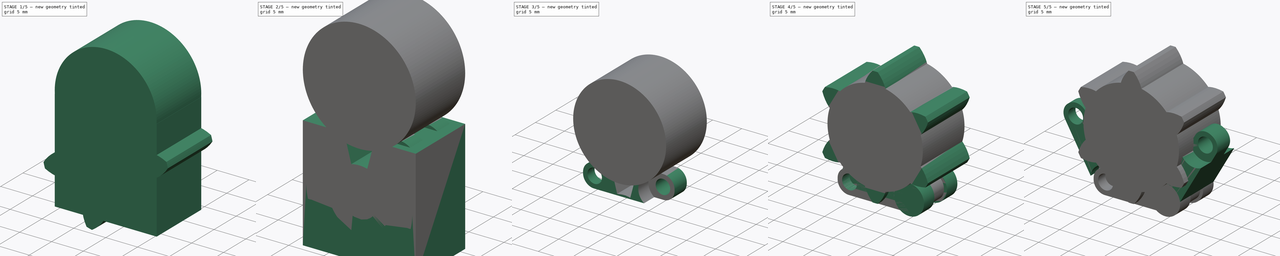
[diagram: build sequence overview — one tinted view per stage of 5, left to right]
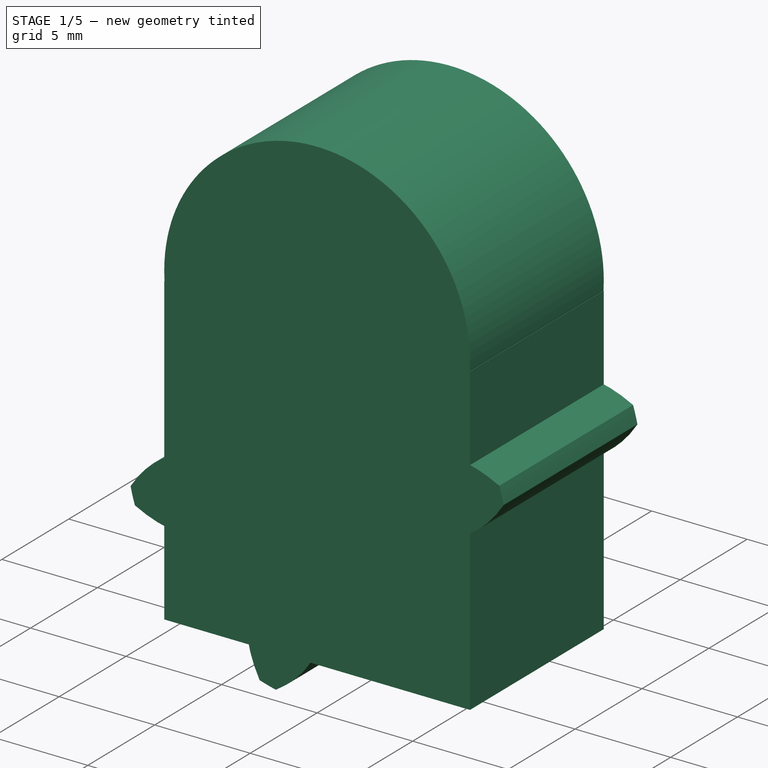
[diagram: stage 1 of 5 — iso view after this stage's code; geometry added in this stage tinted green]
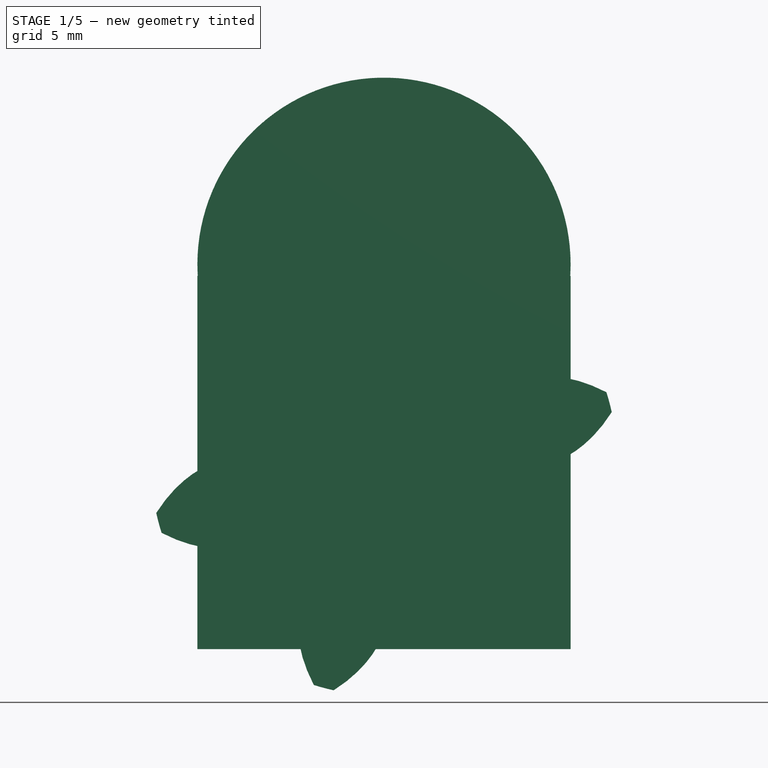
[diagram: stage 1 of 5 — front view after this stage's code; geometry added in this stage tinted green]
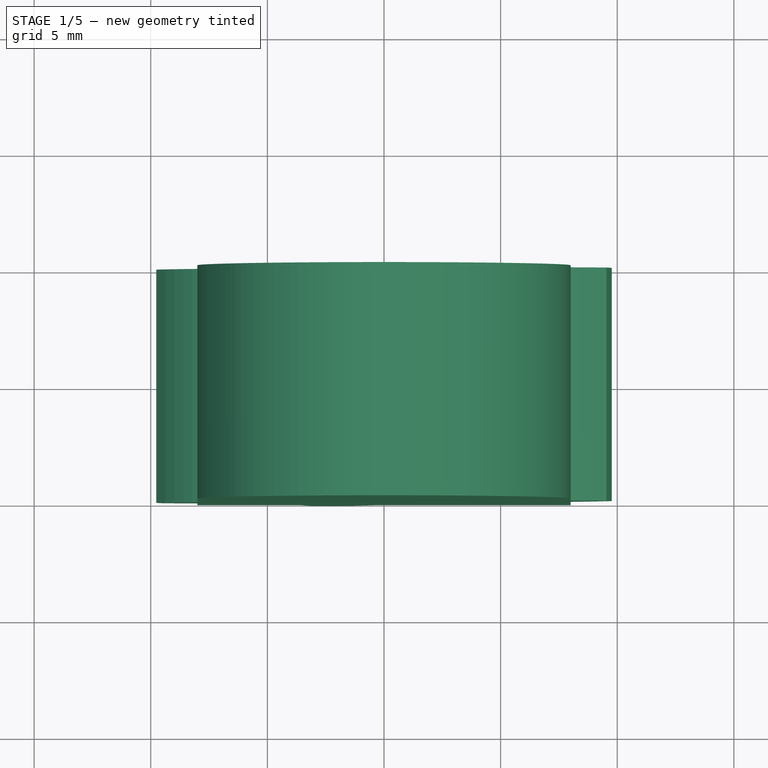
[diagram: stage 1 of 5 — top view after this stage's code; geometry added in this stage tinted green]
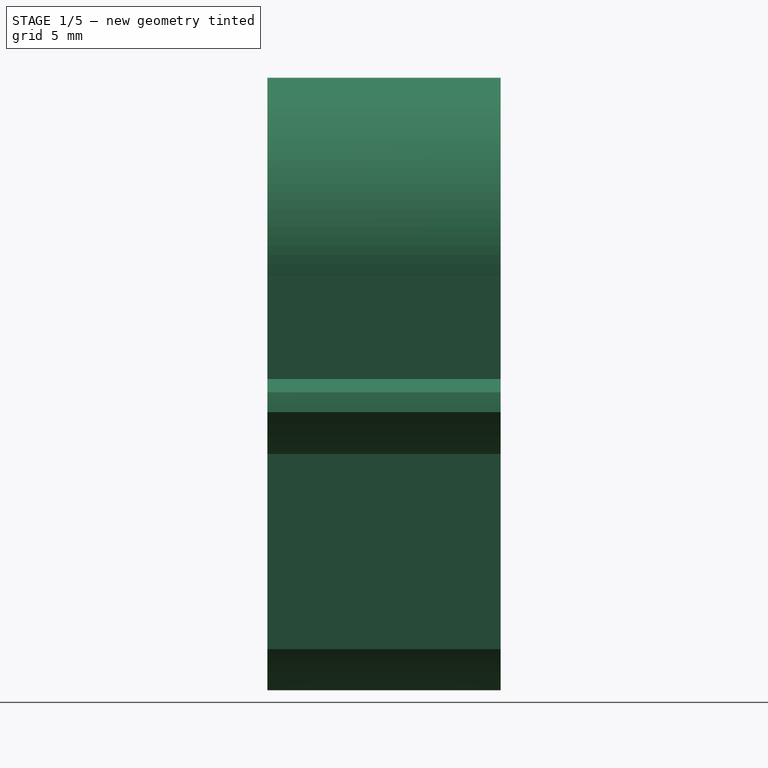
[diagram: stage 1 of 5 — right view after this stage's code; geometry added in this stage tinted green]
FCSTD DOCUMENT  (FreeCAD 0.14R2935 (Git))
Label: track-segment-01
License: CC-BY 3.0
LicenseURL: http://creativecommons.org/licenses/by/3.0/
objects: PartDesign::Pad×5, Part::Cylinder×5, Part::MultiFuse×5, Part::Cut×3, Sketcher::SketchObject×2, Part::FeaturePython×2, Part::MultiCommon×2
note: 29 computed .brp shape members not serialized (recipe doc carries the construction recipe); baked Part::Feature solids carry a one-line shape summary decoded from their .brp

FEATURE [Part::FeaturePython] Gear001  # WARN: FeaturePython — macro-defined, semantics opaque (R4)
  CenterRadius = 2.5
  GearHeight = 10
  LevelOfDetail = 10
  Module = 2.5
  NumberTeeth = 6
  Placement = pos=(0,5,0) rot=(1,0,0;1.5708rad)
  PressureAngle = 20
  Verbose = true
FEATURE [Part::Cylinder] Cylinder003
  Angle = 360
  Height = 10
  Placement = pos=(0,5,0) rot=(1,0,0;1.5708rad)
  Radius = 7.5
FEATURE [Sketcher::SketchObject] Sketch001
  Placement = pos=(0,0,0) rot=(1,0,0;1.5708rad)
  sketch-geometry (8):
    g0: LineSegment StartX=-2 StartY=8 StartZ=0 EndX=-8 EndY=8 EndZ=0
    g1: LineSegment StartX=-8 StartY=8 StartZ=0 EndX=-8 EndY=-8 EndZ=0
    g2: LineSegment StartX=-8 StartY=-8 StartZ=0 EndX=8 EndY=-8 EndZ=0
    g3: LineSegment StartX=8 StartY=-8 StartZ=0 EndX=8 EndY=8 EndZ=0
    g4: LineSegment StartX=8 StartY=8 StartZ=0 EndX=2 EndY=8 EndZ=0
    g5: LineSegment StartX=2 StartY=8 StartZ=0 EndX=2 EndY=4 EndZ=0
    g6: LineSegment StartX=2 StartY=4 StartZ=0 EndX=-2 EndY=4 EndZ=0
    g7: LineSegment StartX=-2 StartY=4 StartZ=0 EndX=-2 EndY=8 EndZ=0
  constraints (24):
    c: Horizontal(g0)
    c: Coincident(g0,g1)
    c: Vertical(g1)
    c: Coincident(g1,g2)
    c: Horizontal(g2)
    c: Coincident(g2,g3)
    c: Vertical(g3)
    c: Coincident(g3,g4)
    c: Horizontal(g4)
    c: Coincident(g4,g5)
    c: Vertical(g5)
    c: Coincident(g5,g6)
    c: Horizontal(g6)
    c: Coincident(g6,g7)
    c: Vertical(g7)
    c: Coincident(g7,g0)
    c: DistanceY(g-1,g4) = 8
    c: DistanceY(g-1,g0) = 8
    c: DistanceY(g-1,g6) = 4
    c: DistanceX(g-1,g0) = -8
    c: DistanceX(g-1,g6) = -2
    c: DistanceX(g-1,g5) = 2
    c: DistanceX(g-1,g3) = 8
    c: DistanceY(g-1,g2) = -8
FEATURE [PartDesign::Pad] Pad004
  Length = 10
  Length2 = 100
  Midplane = true
  Placement = pos=(0,0,0) rot=(1,0,0;1.5708rad)
  Sketch = -> Sketch001
  Type = 0
FEATURE [Part::Cylinder] Cylinder004
  Angle = 360
  Height = 10
  Placement = pos=(0,5,8.5) rot=(1,0,0;1.5708rad)
  Radius = 8
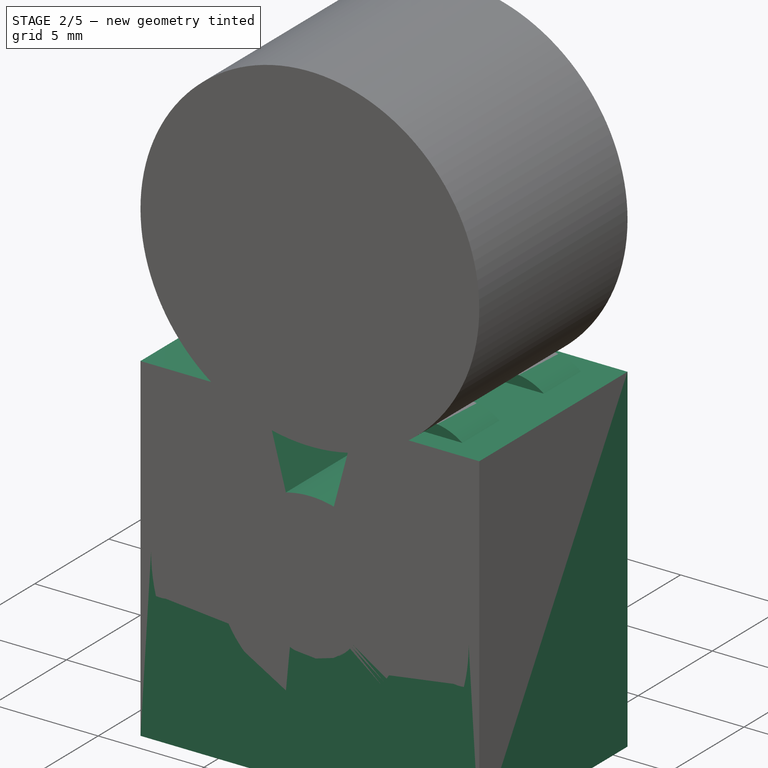
[diagram: stage 2 of 5 — iso view after this stage's code; geometry added in this stage tinted green]
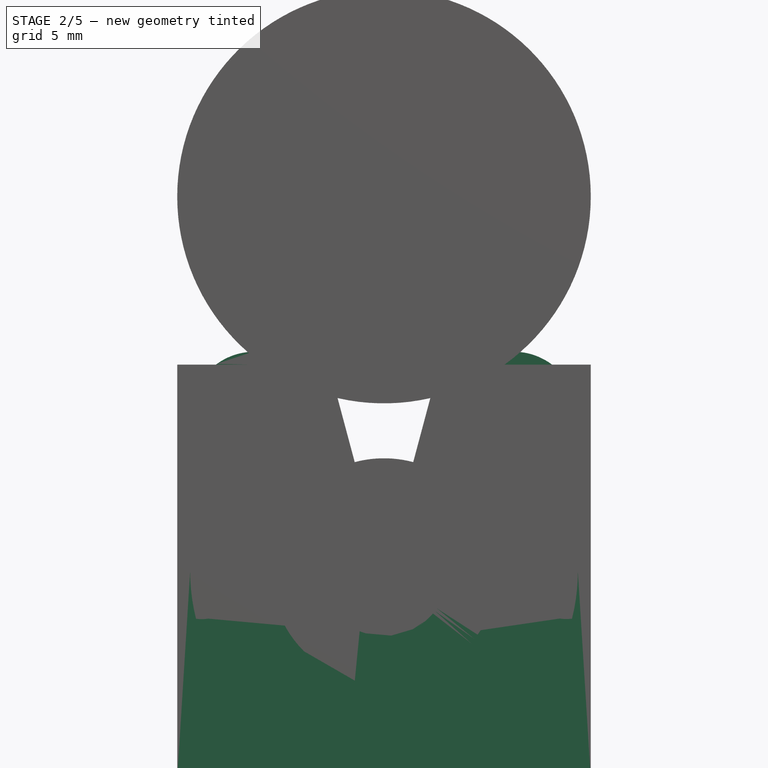
[diagram: stage 2 of 5 — front view after this stage's code; geometry added in this stage tinted green]
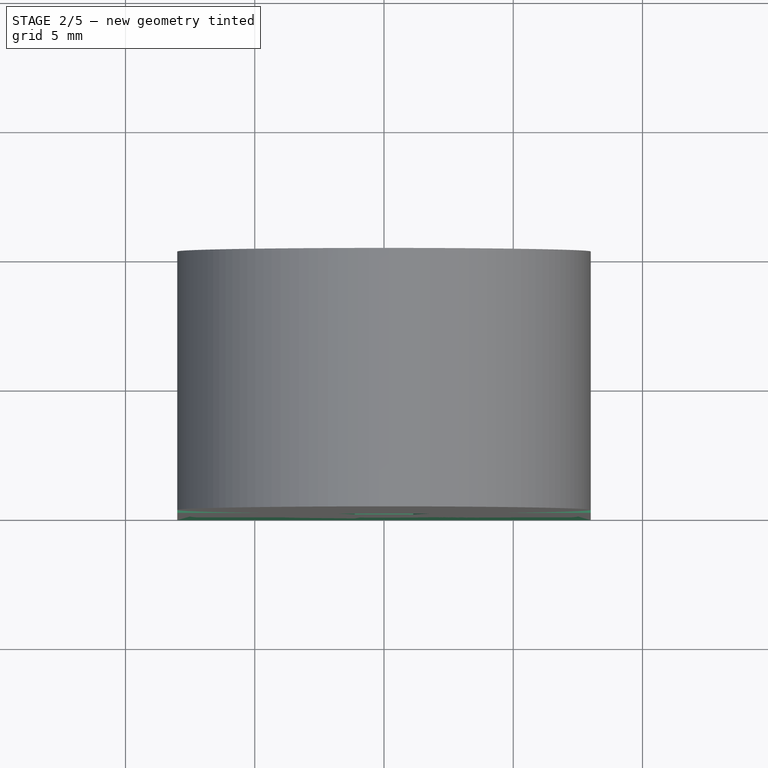
[diagram: stage 2 of 5 — top view after this stage's code; geometry added in this stage tinted green]
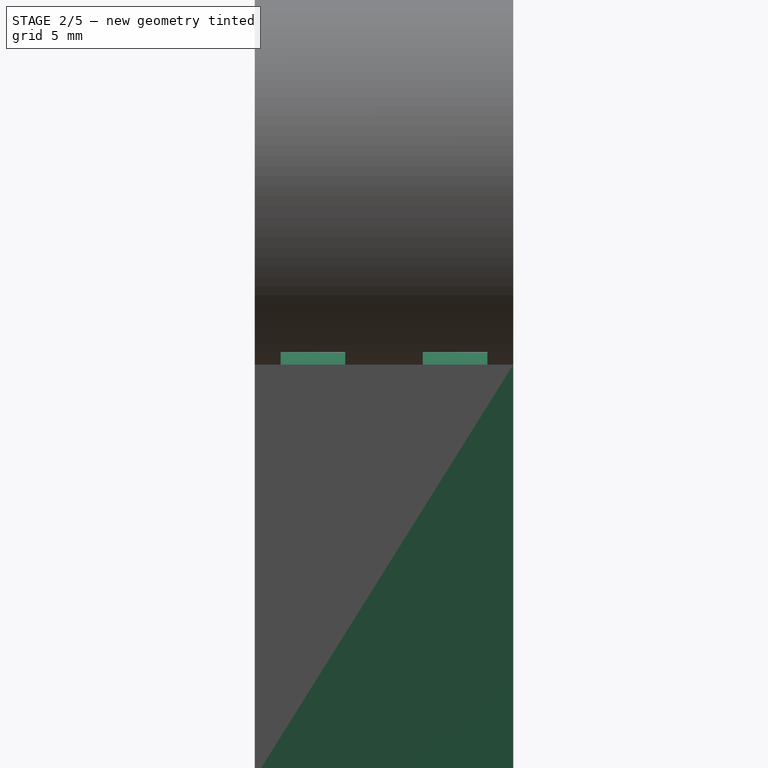
[diagram: stage 2 of 5 — right view after this stage's code; geometry added in this stage tinted green]
FEATURE [Part::Cylinder] Cylinder
  Angle = 360
  Height = 4.5
  Placement = pos=(-5,2.25,0) rot=(1,0,0;1.5708rad)
  Radius = 2.5
FEATURE [Part::Cylinder] Cylinder001
  Angle = 360
  Height = 2.5
  Placement = pos=(5,4,0) rot=(1,0,0;1.5708rad)
  Radius = 2.5
FEATURE [Part::Cylinder] Cylinder002
  Angle = 360
  Height = 2.5
  Placement = pos=(5,-1.5,0) rot=(1,0,0;1.5708rad)
  Radius = 2.5
FEATURE [Part::MultiCommon] Common
  Placement = pos=(0,0,0) rot=(0,1,0;0.261799rad)
  Shapes = -> [Gear001,Cylinder003]
FEATURE [Part::MultiFuse] Fusion004
  Placement = pos=(0,0,-6) rot=(0,0,1;0rad)
  Shapes = -> [Common,Pad004]
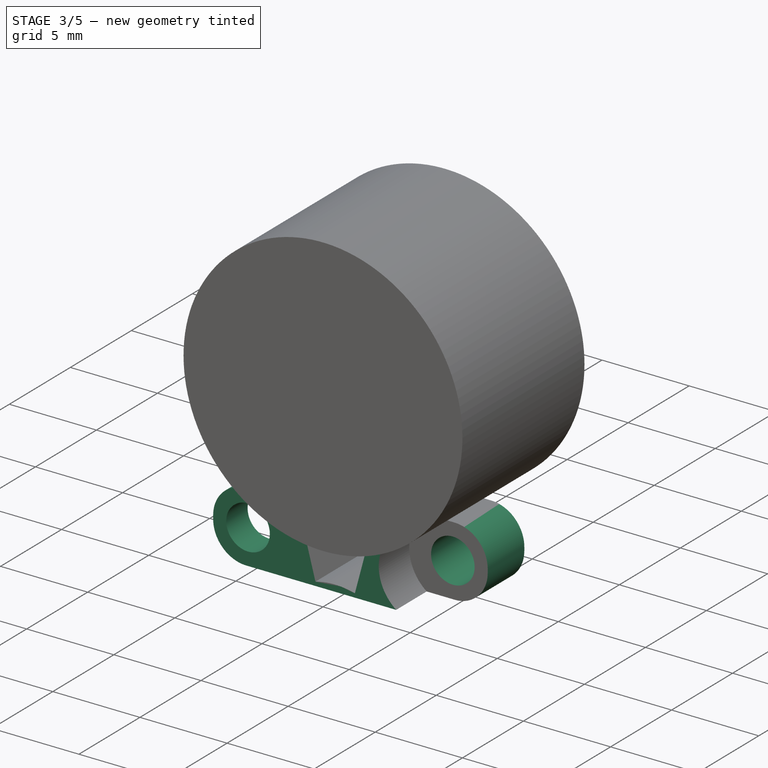
[diagram: stage 3 of 5 — iso view after this stage's code; geometry added in this stage tinted green]
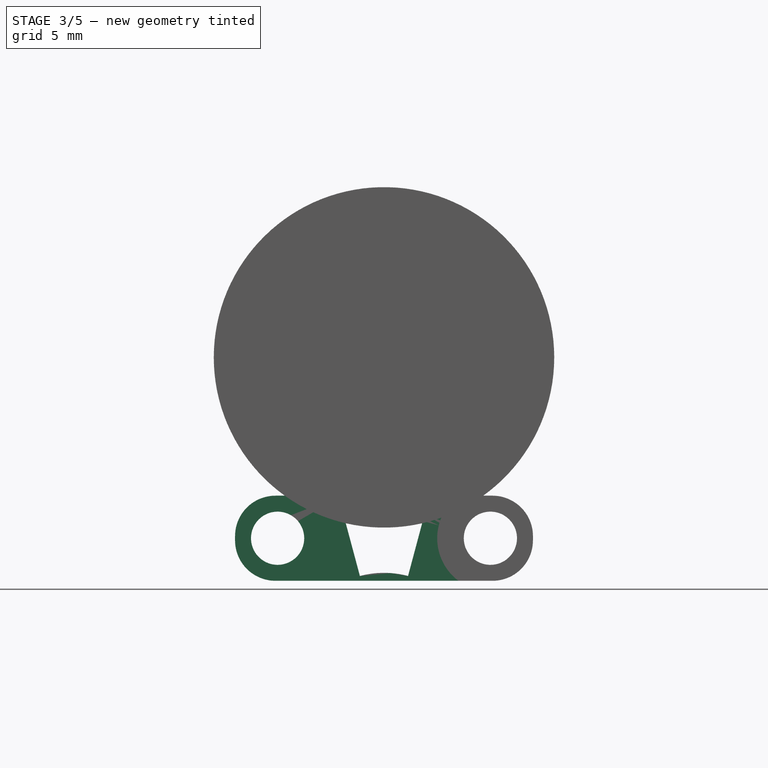
[diagram: stage 3 of 5 — front view after this stage's code; geometry added in this stage tinted green]
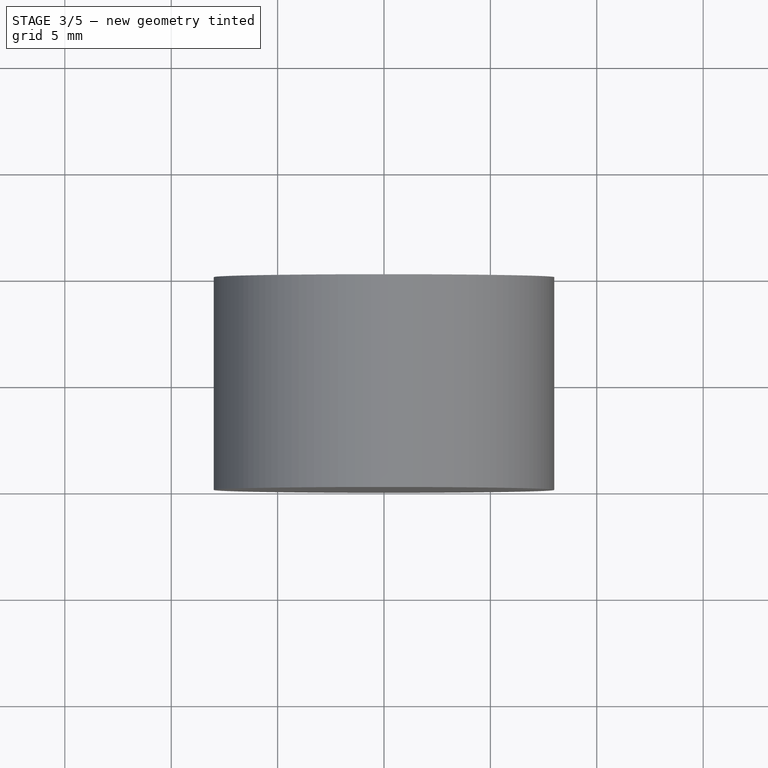
[diagram: stage 3 of 5 — top view after this stage's code; geometry added in this stage tinted green]
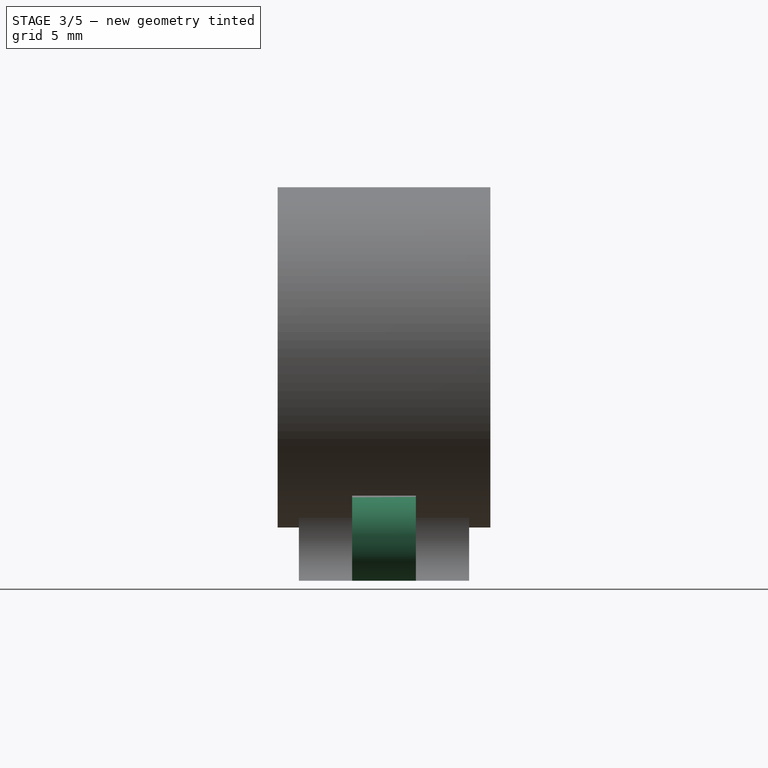
[diagram: stage 3 of 5 — right view after this stage's code; geometry added in this stage tinted green]
FEATURE [Sketcher::SketchObject] Sketch  label="axes-cutouts"
  Placement = pos=(0,0,0) rot=(1,0,0;1.5708rad)
  sketch-geometry (10):
    g0: Circle CenterX=-5 CenterY=0 CenterZ=0 NormalX=0 NormalY=0 NormalZ=1 Radius=1.25
    g1: Circle CenterX=5 CenterY=0 CenterZ=0 NormalX=0 NormalY=0 NormalZ=1 Radius=1.25
    g2: LineSegment StartX=-5.1 StartY=2 StartZ=0 EndX=5.1 EndY=2 EndZ=0
    g3: LineSegment StartX=7 StartY=0.1 StartZ=0 EndX=7 EndY=-0.1 EndZ=0
    g4: LineSegment StartX=5.1 StartY=-2 StartZ=0 EndX=-5.1 EndY=-2 EndZ=0
    g5: LineSegment StartX=-7 StartY=-0.1 StartZ=0 EndX=-7 EndY=0.1 EndZ=0
    g6: ArcOfCircle CenterX=-5.1 CenterY=0.1 CenterZ=0 NormalX=0 NormalY=0 NormalZ=1 Radius=1.9 StartAngle=1.5708 EndAngle=3.14159
    g7: ArcOfCircle CenterX=5.1 CenterY=0.1 CenterZ=0 NormalX=0 NormalY=0 NormalZ=1 Radius=1.9 StartAngle=0 EndAngle=1.5708
    g8: ArcOfCircle CenterX=5.1 CenterY=-0.1 CenterZ=0 NormalX=0 NormalY=0 NormalZ=1 Radius=1.9 StartAngle=4.71239 EndAngle=6.28319
    g9: ArcOfCircle CenterX=-5.1 CenterY=-0.1 CenterZ=0 NormalX=0 NormalY=0 NormalZ=1 Radius=1.9 StartAngle=3.14159 EndAngle=4.71239
  constraints (26):
    c: Radius(g0) = 1.25
    c: Radius(g1) = 1.25
    c: DistanceY(g-1,g1) = 0
    c: DistanceY(g-1,g0) = 0
    c: DistanceX(g-1,g0) = -5
    c: DistanceX(g-1,g1) = 5
    c: Horizontal(g2)
    c: Horizontal(g4)
    c: Vertical(g3)
    c: Vertical(g5)
    c: Tangent(g5,g6)
    c: Tangent(g2,g6)
    c: Tangent(g2,g7)
    c: Tangent(g3,g7)
    c: Tangent(g3,g8)
    c: Tangent(g4,g8)
    c: Tangent(g4,g9)
    c: Tangent(g5,g9)
    c: Radius(g6) = 1.9
    c: Radius(g9) = 1.9
    c: Radius(g7) = 1.9
    c: Radius(g8) = 1.9
    c: DistanceX(g-1,g5) = -7
    c: DistanceY(g-1,g2) = 2
    c: DistanceX(g-1,g3) = 7
    c: DistanceY(g-1,g4) = -2
FEATURE [PartDesign::Pad] Pad
  Length = 8
  Length2 = 100
  Midplane = true
  Placement = pos=(0,0,0) rot=(1,0,0;1.5708rad)
  Sketch = -> Sketch
  Type = 0
FEATURE [Part::MultiFuse] Fusion  label="axes-cutout"
  Shapes = -> [Cylinder,Cylinder001,Cylinder002]
FEATURE [Part::Cut] Cut  label="track-shape"
  Base = -> Pad
  Tool = -> Fusion
FEATURE [Part::MultiCommon] Common001
  Shapes = -> [Cut,Fusion004]
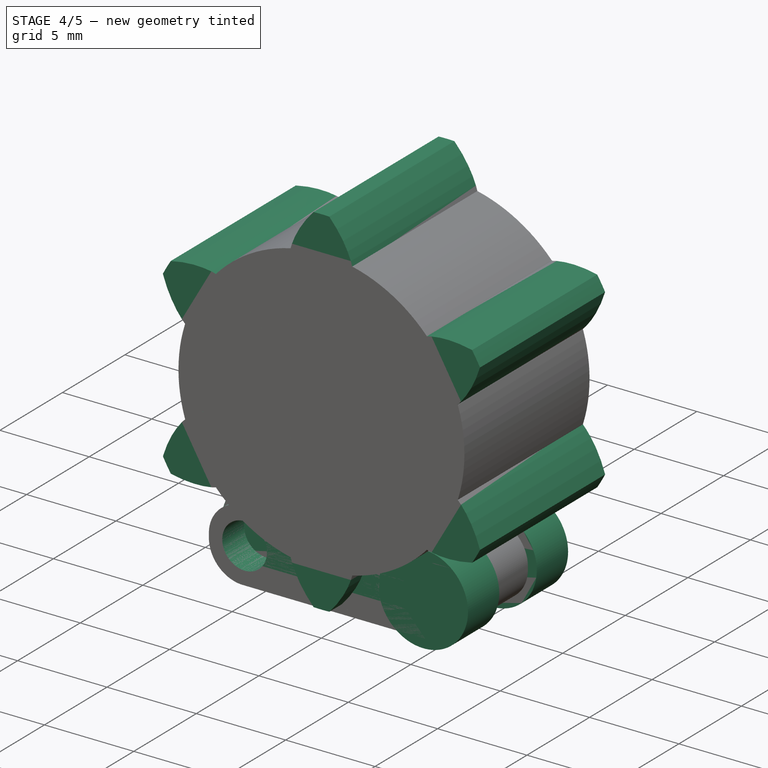
[diagram: stage 4 of 5 — iso view after this stage's code; geometry added in this stage tinted green]
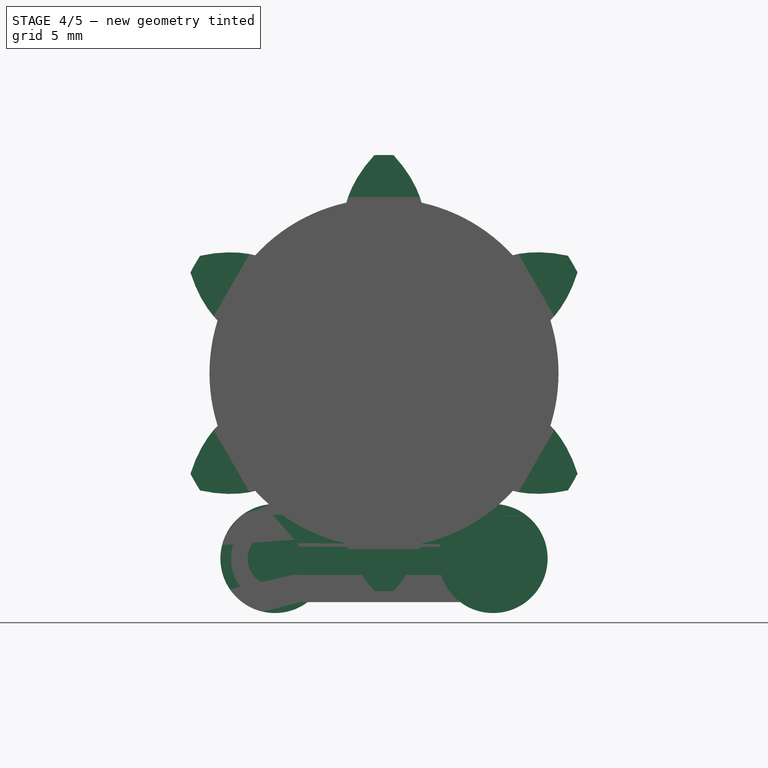
[diagram: stage 4 of 5 — front view after this stage's code; geometry added in this stage tinted green]
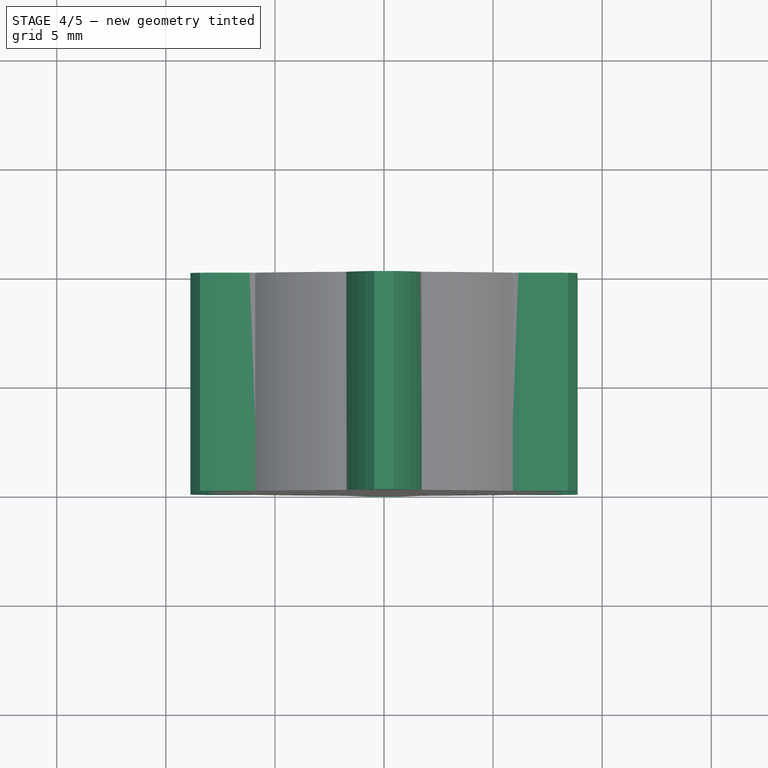
[diagram: stage 4 of 5 — top view after this stage's code; geometry added in this stage tinted green]
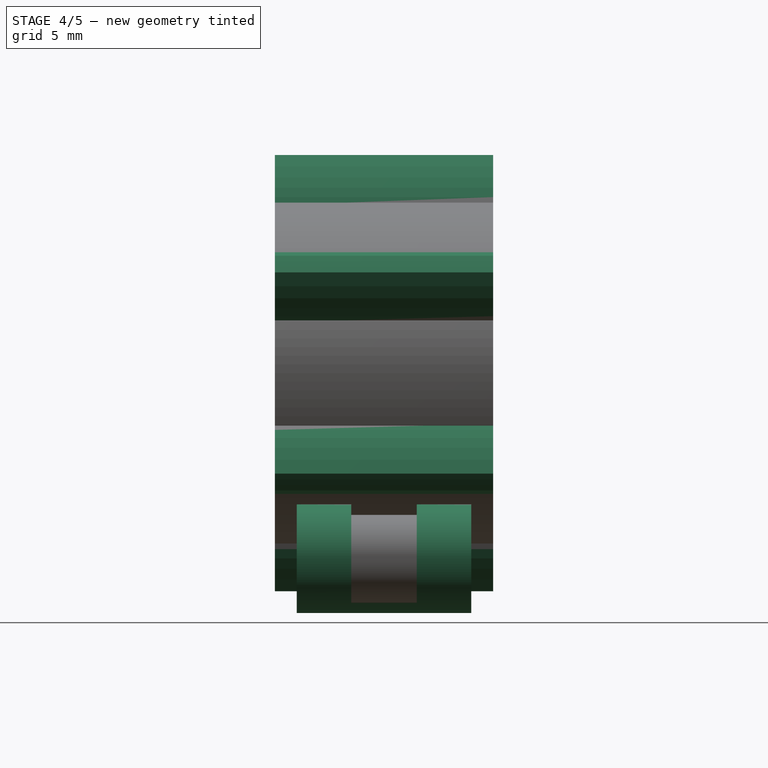
[diagram: stage 4 of 5 — right view after this stage's code; geometry added in this stage tinted green]
FEATURE [Part::MultiFuse] Fusion002  label="axes-cutout002"
  Shapes = -> [Cylinder,Cylinder001,Cylinder002]
FEATURE [PartDesign::Pad] Pad002
  Length = 8
  Length2 = 100
  Midplane = true
  Placement = pos=(0,0,0) rot=(1,0,0;1.5708rad)
  Sketch = -> Sketch
  Type = 0
FEATURE [Part::FeaturePython] Gear  # WARN: FeaturePython — macro-defined, semantics opaque (R4)
  CenterRadius = 2.5
  GearHeight = 10
  LevelOfDetail = 10
  Module = 2.5
  NumberTeeth = 6
  Placement = pos=(0,5,8.5) rot=(0.983106,-0.129428,0.129428;1.58783rad)
  PressureAngle = 20
  Verbose = true
FEATURE [Part::MultiFuse] Fusion003  label="axes-cutout003"
  Shapes = -> [Cylinder,Cylinder001,Cylinder002]
FEATURE [PartDesign::Pad] Pad003
  Length = 8
  Length2 = 100
  Midplane = true
  Placement = pos=(0,0,0) rot=(1,0,0;1.5708rad)
  Sketch = -> Sketch
  Type = 0
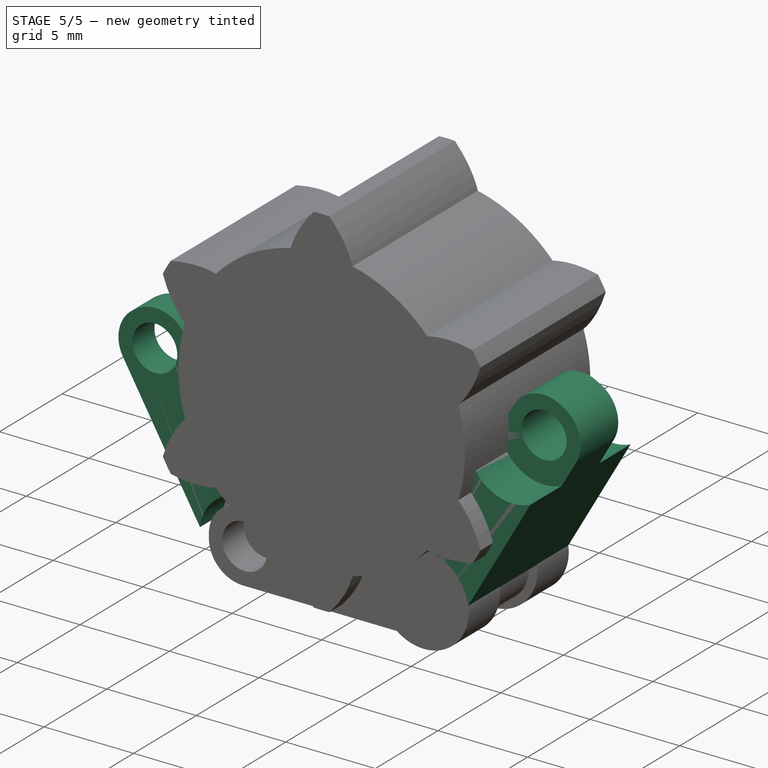
[diagram: stage 5 of 5 — iso view after this stage's code; geometry added in this stage tinted green]
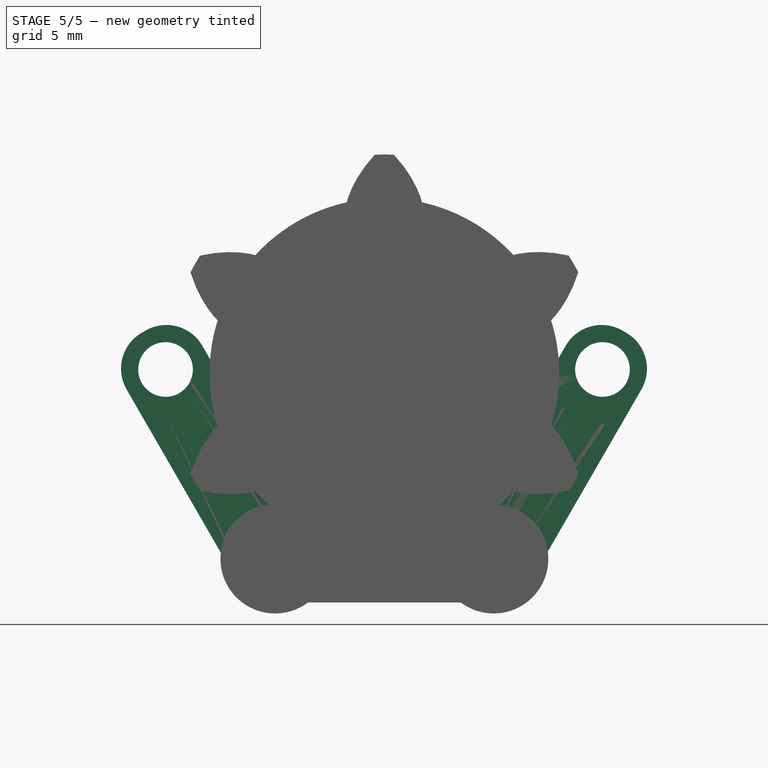
[diagram: stage 5 of 5 — front view after this stage's code; geometry added in this stage tinted green]
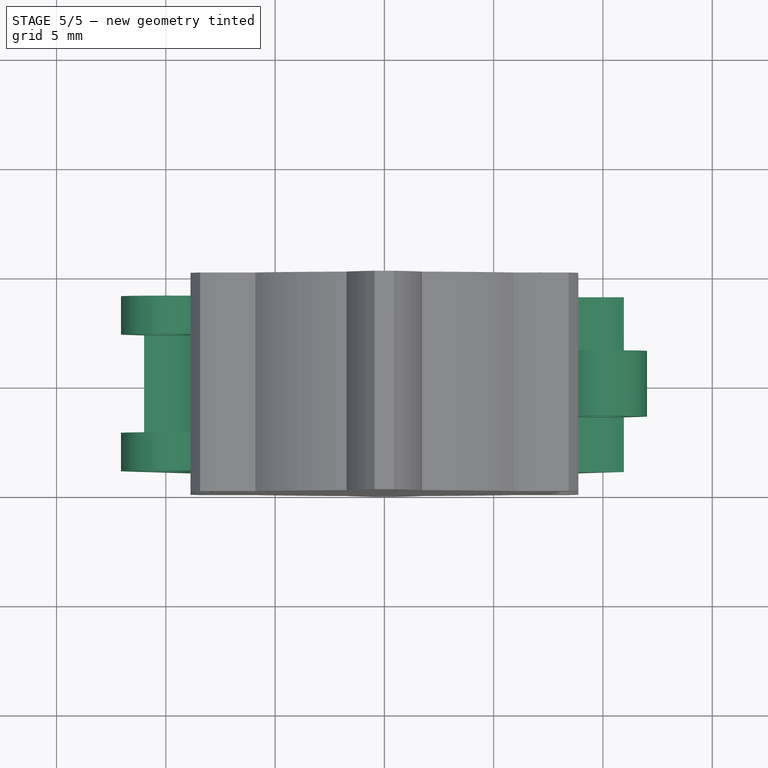
[diagram: stage 5 of 5 — top view after this stage's code; geometry added in this stage tinted green]
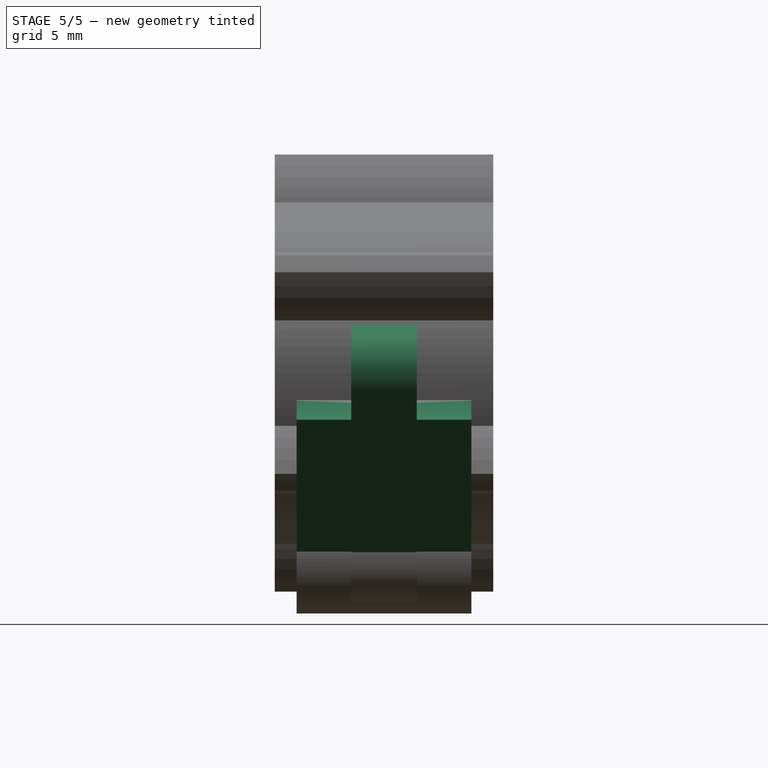
[diagram: stage 5 of 5 — right view after this stage's code; geometry added in this stage tinted green]
FEATURE [Part::MultiFuse] Fusion001  label="axes-cutout001"
  Shapes = -> [Cylinder,Cylinder001,Cylinder002]
FEATURE [PartDesign::Pad] Pad001
  Length = 8
  Length2 = 100
  Midplane = true
  Placement = pos=(0,0,0) rot=(1,0,0;1.5708rad)
  Sketch = -> Sketch
  Type = 0
FEATURE [Part::Cut] Cut001  label="track-shape001"
  Base = -> Pad001
  Placement = pos=(7.47807,0.000116886,4.33345) rot=(0,-1,0;1.0472rad)
  Tool = -> Fusion001
FEATURE [Part::Cut] Cut002  label="track-shape002"
  Base = -> Pad002
  Placement = pos=(-7.51359,8.3217e-05,4.33345) rot=(0,1,0;1.0472rad)
  Tool = -> Fusion002
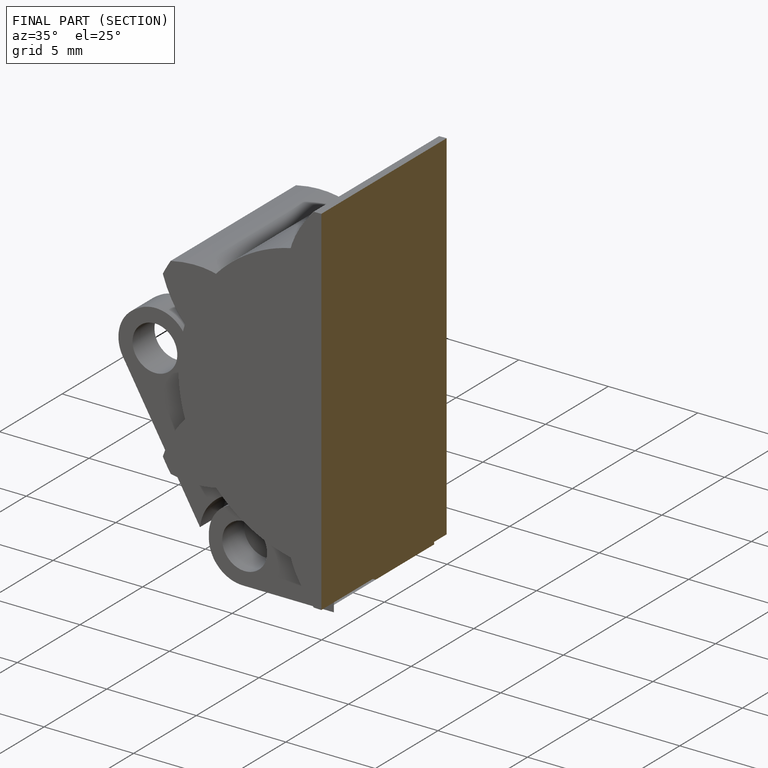
[diagram: finished part — half-section view (interior)]
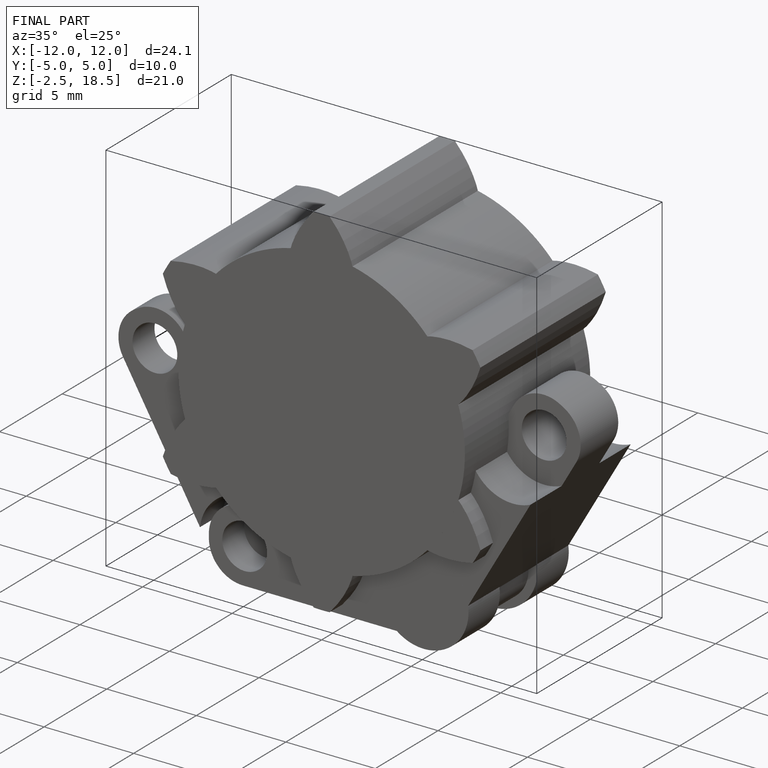
[diagram: finished part — iso view with bounding-box wireframe]
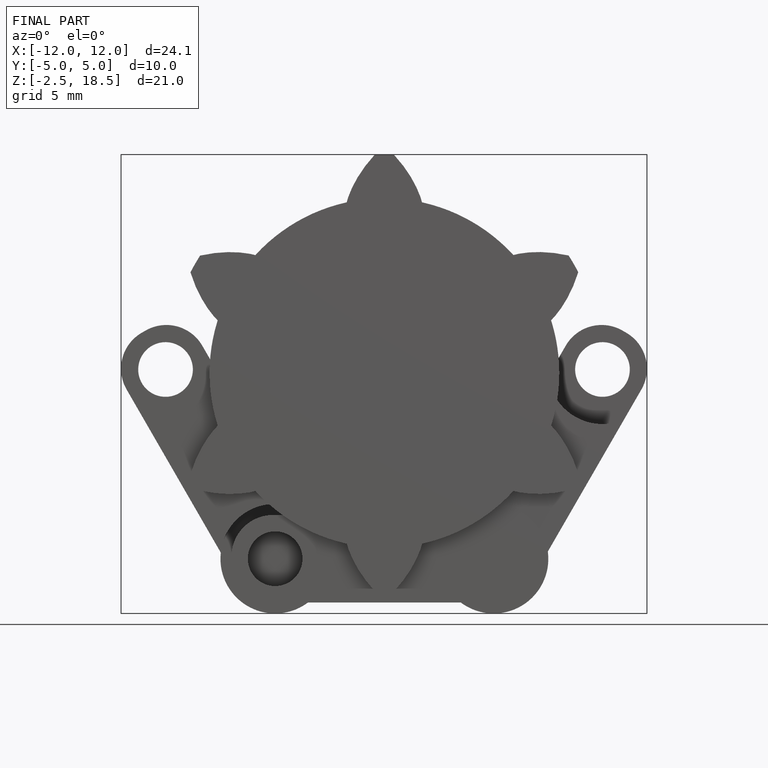
[diagram: finished part — front view with bounding-box wireframe]
